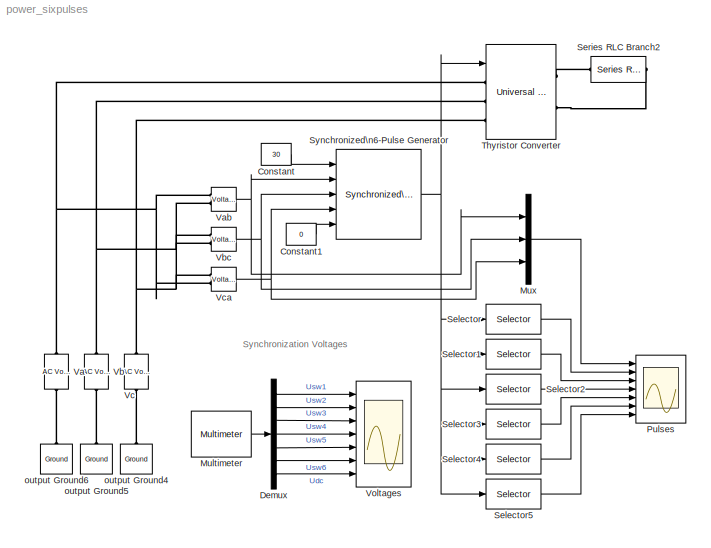
MODEL power_sixpulses
KIND model
BLOCK [Constant] Constant
  Value = 30
BLOCK [Constant] Constant1
  Value = 0
BLOCK [Demux] Demux
  Outputs = 7
  Ports = [1, 7]
BLOCK [Reference] Multimeter  REF=powerlib/Measurements/Multimeter
  AttributesFormatString = \\n
  AxesSetting = [0,0.1,-100,100]
  Display = 0
  Gain = [-1 -1 -1 -1 -1 -1 1]
  L = 16
  OutputType = Magnitude
  PSBOutputType = 1
  PSBequivalent = 0
  PhasorSimulation = off
  Ports = [0, 1]
  SavedBlockNames = -11
  SourceBlock = powerlib/Measurements/Multimeter
  SourceType = MultimeterPSB
  Tag = PoWeRsYsTeMmEaSuReMeNt
  sel = [1 2 3 4 5 6 10]
  yselected = {'Usw1: Thyristor Converter','Usw2: Thyristor Converter','Usw3: Thyristor Converter','Usw4: Thyristor Converter','Usw5: Thyristor Converter','Usw6: Thyristor Converter','Udc: Thyristor Converter'};
BLOCK [Mux] Mux
  DisplayOption = bar
  Inputs = 3
  Ports = [3, 1]
BLOCK [Scope] Pulses
  DataFormat = StructureWithTime
  LimitDataPoints = off
  NumInputPorts = 7
  Ports = [7]
  SampleInput = on
  SampleTime = 1/60/512
  SaveName = VI_scope
  SaveToWorkspace = on
  TimeRange = 0.035
  YMax = 400~1~1~1~1~1~1
  YMin = -400~-1~-1~-1~0~0~0
  ZoomMode = xonly
BLOCK [Selector] Selector
  InputPortWidth = 6
  Ports = [1, 1]
BLOCK [Selector] Selector1
  Elements = 2
  InputPortWidth = 6
  Ports = [1, 1]
BLOCK [Selector] Selector2
  Elements = 3
  InputPortWidth = 6
  Ports = [1, 1]
BLOCK [Selector] Selector3
  Elements = 4
  InputPortWidth = 6
  Ports = [1, 1]
BLOCK [Selector] Selector4
  Elements = 5
  InputPortWidth = 6
  Ports = [1, 1]
BLOCK [Selector] Selector5
  Elements = 6
  InputPortWidth = 6
  Ports = [1, 1]
BLOCK [Reference] Series RLC Branch2  REF=powerlib/Elements/Series RLC Branch
  AttributesFormatString = \\n
  Capacitance = inf
  Inductance = 0
  LConnTagsString = __new0
  Measurements = None
  PhysicalDomain = powersysdomain
  PortType = p1
  Ports = [0, 0, 0, 0, 0, 1, 1]
  RConnTagsString = __new0
  Resistance = 2
  SourceBlock = powerlib/Elements/Series RLC Branch
  SourceType = Series RLC Branch
  SubClassName = unknown
BLOCK [Reference] Synchronized\n6-Pulse Generator  REF=powerlib_extras/Control \nBlocks/Synchronized\n6-Pulse Generator
  Double_Pulse = on
  Ports = [5, 1]
  SourceBlock = powerlib_extras/Control \nBlocks/Synchronized\n6-Pulse Generator
  SourceType = Synchronized 6-pulse generator
  freq = 60
  pwidth = 10
BLOCK [Reference] Thyristor Converter  REF=powerlib/Power\nElectronics/Universal Bridge
  Arms = 3
  AttributesFormatString = \\n
  Device = Thyristors
  ForwardVoltage = 0
  ForwardVoltages = [  0.8  0.8  ]
  GTOparameters = [ 10e-6 , 20e-6 ]
  IGBTparameters = [ 1e-6 , 2e-6 ]
  Lon = 0
  Measurements = All voltages and currents
  Ports = [1, 0, 0, 0, 0, 3, 2]
  Ron = 1e-3
  SnubberCapacitance = 1e-6
  SnubberResistance = 500
  SourceBlock = powerlib/Power\nElectronics/Universal Bridge
  SourceType = Universal Bridge
BLOCK [Reference] Va  REF=powerlib/Electrical\nSources/AC Voltage Source
  Amplitude = 200
  AttributesFormatString = \\n
  Description = source block
  Frequency = 60
  Measurements = None
  Phase = 0
  Ports = [0, 0, 0, 0, 0, 1, 1]
  SampleTime = 0
  SourceBlock = powerlib/Electrical\nSources/AC Voltage Source
  SourceType = AC Voltage Source
BLOCK [Reference] Vab  REF=powerlib/Measurements/Voltage Measurement
  AttributesFormatString = \\n
  OutputType = Magnitude
  PSBequivalent = 0
  PhasorSimulation = off
  Ports = [0, 1, 0, 0, 0, 2]
  SourceBlock = powerlib/Measurements/Voltage Measurement
  SourceType = Voltage Measurement
  Tag = PoWeRsYsTeMmEaSuReMeNt
BLOCK [Reference] Vb  REF=powerlib/Electrical\nSources/AC Voltage Source
  Amplitude = 200
  AttributesFormatString = \\n
  Description = source block
  Frequency = 60
  Measurements = None
  Phase = -120
  Ports = [0, 0, 0, 0, 0, 1, 1]
  SampleTime = 0
  SourceBlock = powerlib/Electrical\nSources/AC Voltage Source
  SourceType = AC Voltage Source
BLOCK [Reference] Vbc  REF=powerlib/Measurements/Voltage Measurement
  AttributesFormatString = \\n
  OutputType = Magnitude
  PSBequivalent = 0
  PhasorSimulation = off
  Ports = [0, 1, 0, 0, 0, 2]
  SourceBlock = powerlib/Measurements/Voltage Measurement
  SourceType = Voltage Measurement
  Tag = PoWeRsYsTeMmEaSuReMeNt
BLOCK [Reference] Vc  REF=powerlib/Electrical\nSources/AC Voltage Source
  Amplitude = 200
  AttributesFormatString = \\n
  Description = source block
  Frequency = 60
  Measurements = None
  Phase = 120
  Ports = [0, 0, 0, 0, 0, 1, 1]
  SampleTime = 0
  SourceBlock = powerlib/Electrical\nSources/AC Voltage Source
  SourceType = AC Voltage Source
BLOCK [Reference] Vca  REF=powerlib/Measurements/Voltage Measurement
  AttributesFormatString = \\n
  OutputType = Magnitude
  PSBequivalent = 0
  PhasorSimulation = off
  Ports = [0, 1, 0, 0, 0, 2]
  SourceBlock = powerlib/Measurements/Voltage Measurement
  SourceType = Voltage Measurement
  Tag = PoWeRsYsTeMmEaSuReMeNt
BLOCK [Scope] Voltages
  DataFormat = StructureWithTime
  LimitDataPoints = off
  NumInputPorts = 7
  Ports = [7]
  SampleInput = on
  SampleTime = 1/60/512
  SaveName = VI_scope1
  SaveToWorkspace = on
  TimeRange = 0.035
  YMax = 400~1~1~1~1~1~1
  YMin = -400~-1~-1~-1~0~0~0
  ZoomMode = xonly
BLOCK [Reference] output Ground4  REF=powerlib/Elements/Ground
  AttributesFormatString = \\n
  LConnTagsString = a
  PhysicalDomain = powersysdomain
  PortType = p1
  Ports = [0, 0, 0, 0, 0, 1]
  SourceBlock = powerlib/Elements/Ground
  SourceType = Ground
  SubClassName = unknown
BLOCK [Reference] output Ground5  REF=powerlib/Elements/Ground
  AttributesFormatString = \\n
  LConnTagsString = a
  PhysicalDomain = powersysdomain
  PortType = p1
  Ports = [0, 0, 0, 0, 0, 1]
  SourceBlock = powerlib/Elements/Ground
  SourceType = Ground
  SubClassName = unknown
BLOCK [Reference] output Ground6  REF=powerlib/Elements/Ground
  AttributesFormatString = \\n
  LConnTagsString = a
  PhysicalDomain = powersysdomain
  PortType = p1
  Ports = [0, 0, 0, 0, 0, 1]
  SourceBlock = powerlib/Elements/Ground
  SourceType = Ground
  SubClassName = unknown
ANNOTATION (root): Synchronization Voltages
LINE Constant1:1 -> Synchronized\n6-Pulse Generator:5
LINE Constant:1 -> Synchronized\n6-Pulse Generator:1
LINE Demux:1 -> Voltages:1
LINE Demux:2 -> Voltages:2
LINE Demux:3 -> Voltages:3
LINE Demux:4 -> Voltages:4
LINE Demux:5 -> Voltages:5
LINE Demux:6 -> Voltages:6
LINE Demux:7 -> Voltages:7
LINE Multimeter:1 -> Demux:1
LINE Mux:1 -> Pulses:1
LINE Selector1:1 -> Pulses:3
LINE Selector2:1 -> Pulses:4
LINE Selector3:1 -> Pulses:5
LINE Selector4:1 -> Pulses:6
LINE Selector5:1 -> Pulses:7
LINE Selector:1 -> Pulses:2
NET Synchronized\n6-Pulse Generator:1 -> Selector1:1, Selector2:1, Selector3:1, Selector4:1, Selector5:1, Selector:1, Thyristor Converter:1
NET Vab:1 -> Mux:1, Synchronized\n6-Pulse Generator:2
NET Vbc:1 -> Mux:2, Synchronized\n6-Pulse Generator:3
NET Vca:1 -> Mux:3, Synchronized\n6-Pulse Generator:4
PLINE Series RLC Branch2:LConn1 -- Thyristor Converter:RConn1
PLINE Series RLC Branch2:RConn1 -- Thyristor Converter:RConn2
PNET net1: Thyristor Converter:LConn1 -- Va:RConn1 -- Vab:LConn1 -- Vca:LConn2
PNET net2: Thyristor Converter:LConn2 -- Vab:LConn2 -- Vb:RConn1 -- Vbc:LConn1
PNET net3: Thyristor Converter:LConn3 -- Vbc:LConn2 -- Vc:RConn1 -- Vca:LConn1
PLINE Va:LConn1 -- output Ground6:LConn1
PLINE Vb:LConn1 -- output Ground5:LConn1
PLINE Vc:LConn1 -- output Ground4:LConn1
note: NET lines group one-source signal fan-out (src -> all destinations, sorted); 1:1 wires keep LINE; PNET lines group multi-terminal physical nets as a canonical sorted terminal list (undirected conserving connections); 2-terminal nets keep the pairwise PLINE form
